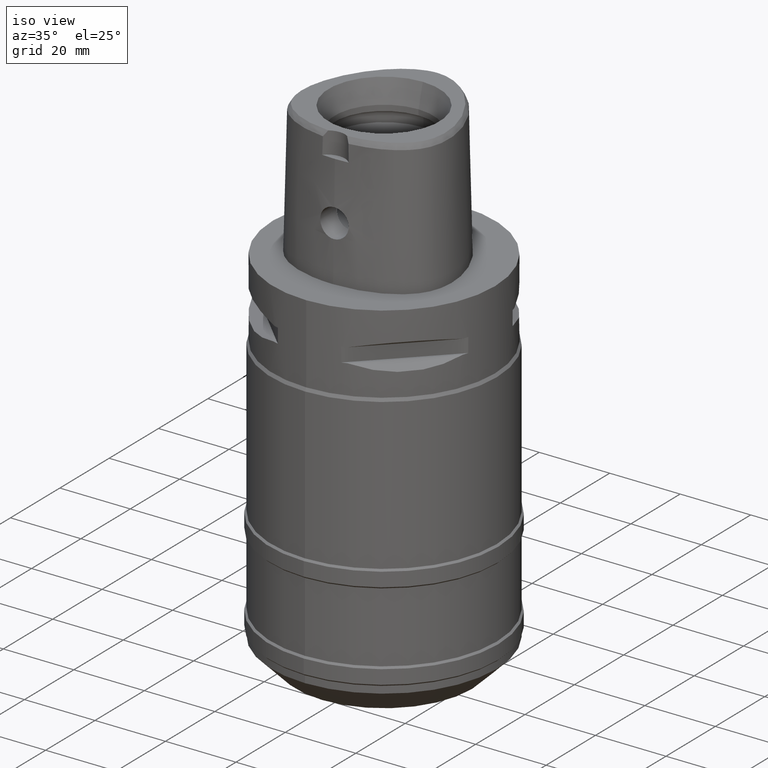
[diagram: clean part render]
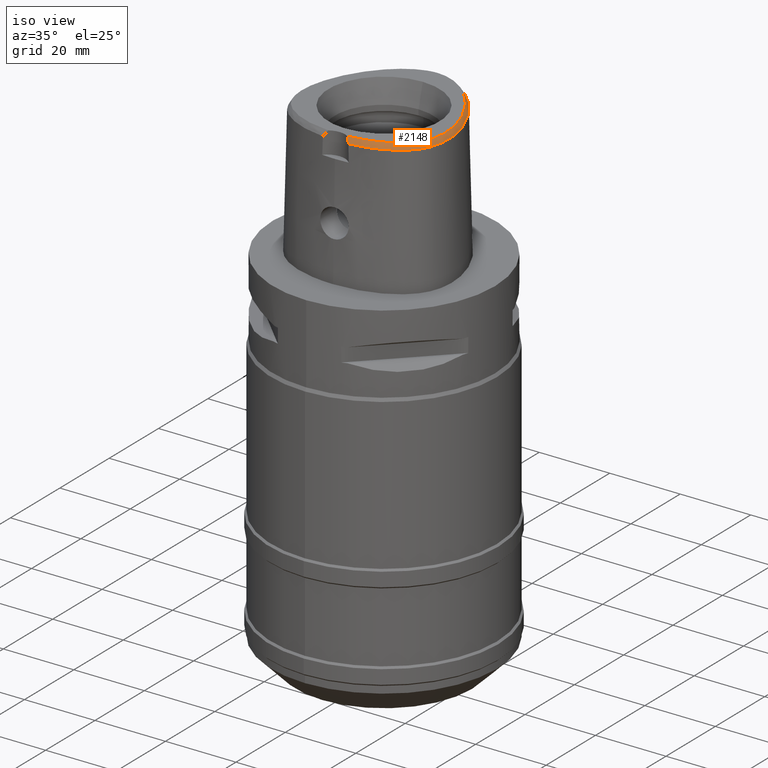
[diagram: same view with one face highlighted and labeled with its STEP entity id]
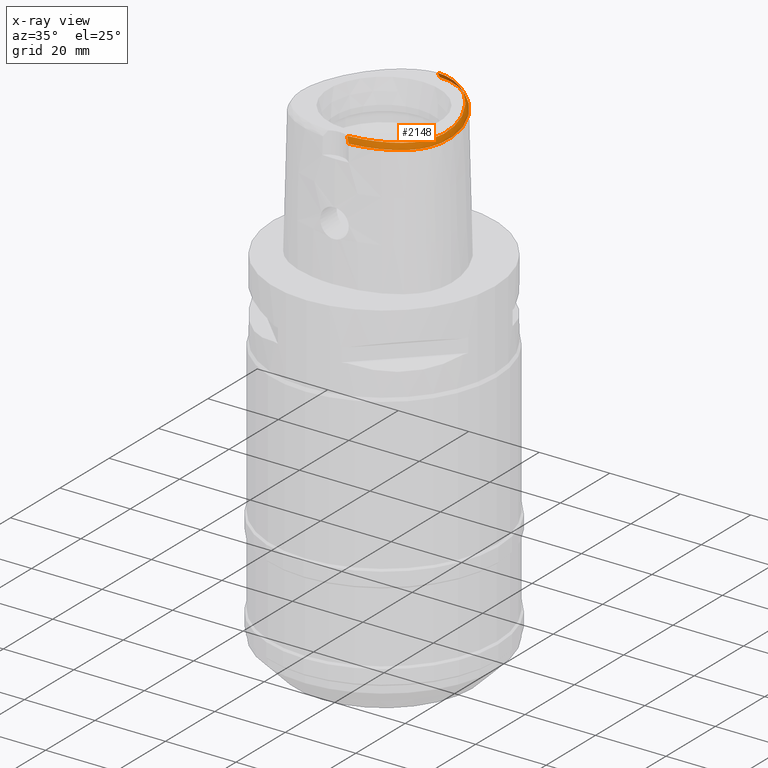
[diagram: x-ray of the same camera — body ghosted, the highlighted face saturated]
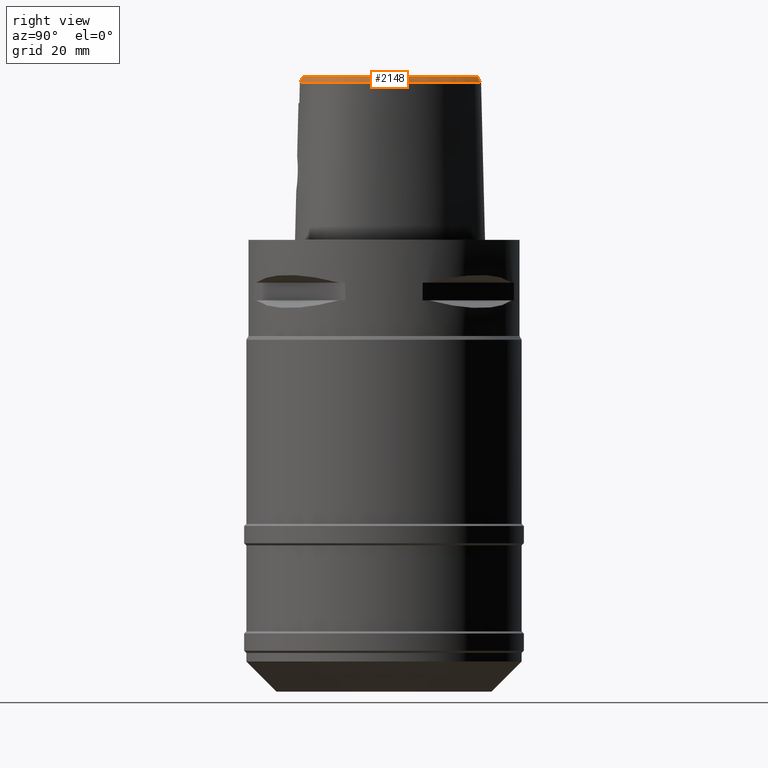
[diagram: same view with one face highlighted and labeled with its STEP entity id]
A machine part, iso view. The second image highlights one B-rep face of the part: STEP entity #2148.
The next image is the same camera in x-ray: the body ghosted, the highlighted face saturated — about 0% of this face is hidden behind the body in this view.
A second angle (right view) of the same face is appended — the face is thin or edge-on in the first view.
In plain terms, the highlighted face is a freeform B-spline surface patch.
Its self-contained STEP definition (entity closure, byte-faithful):
#71=CARTESIAN_POINT('',(-3.470944899526E-11,2.168728795390E1,3.8E1));
#76=CARTESIAN_POINT('',(-3.470944899526E-11,2.168728795390E1,3.8E1));
#77=CARTESIAN_POINT('',(3.664446774818E-1,2.168728795390E1,3.8E1));
#78=CARTESIAN_POINT('',(1.115800651417E0,2.164780835158E1,3.8E1));
#79=CARTESIAN_POINT('',(2.278233720594E0,2.146436819102E1,3.8E1));
#80=CARTESIAN_POINT('',(3.512111920667E0,2.114006756116E1,3.8E1));
#81=CARTESIAN_POINT('',(4.825090720471E0,2.065266341585E1,3.8E1));
#82=CARTESIAN_POINT('',(6.204381961431E0,1.998427421272E1,3.8E1));
#83=CARTESIAN_POINT('',(7.586844391552E0,1.915487800532E1,3.8E1));
#84=CARTESIAN_POINT('',(8.971619010853E0,1.816311562069E1,3.8E1));
#85=CARTESIAN_POINT('',(1.036798775425E1,1.699347536473E1,3.8E1));
#86=CARTESIAN_POINT('',(1.183485944204E1,1.557143857497E1,3.8E1));
#87=CARTESIAN_POINT('',(1.341178714067E1,1.378742047720E1,3.8E1));
#88=CARTESIAN_POINT('',(1.496213476814E1,1.171735797671E1,3.8E1));
#89=CARTESIAN_POINT('',(1.637320544182E1,9.484201683278E0,3.8E1));
#90=CARTESIAN_POINT('',(1.760554695613E1,7.147308496516E0,3.8E1));
#91=CARTESIAN_POINT('',(1.862952744834E1,4.765551154351E0,3.8E1));
#92=CARTESIAN_POINT('',(1.939520639405E1,2.490827481268E0,3.8E1));
#93=CARTESIAN_POINT('',(1.989922708082E1,4.913182978251E-1,3.8E1));
#94=CARTESIAN_POINT('',(2.021597235636E1,-1.314393817561E0,3.8E1));
#95=CARTESIAN_POINT('',(2.038210654909E1,-3.008415104711E0,3.8E1));
#96=CARTESIAN_POINT('',(2.040901681505E1,-4.622266832975E0,3.8E1));
#97=CARTESIAN_POINT('',(2.029795291450E1,-6.151198326963E0,3.8E1));
#98=CARTESIAN_POINT('',(2.006225329341E1,-7.535865012974E0,3.8E1));
#99=CARTESIAN_POINT('',(1.972703032173E1,-8.761612926258E0,3.8E1));
#100=CARTESIAN_POINT('',(1.930323316285E1,-9.861965193760E0,3.8E1));
#101=CARTESIAN_POINT('',(1.879910483295E1,-1.085254401266E1,3.8E1));
#102=CARTESIAN_POINT('',(1.819600434693E1,-1.178074744382E1,3.8E1));
#103=CARTESIAN_POINT('',(1.745668879329E1,-1.269742070119E1,3.8E1));
#104=CARTESIAN_POINT('',(1.656186212653E1,-1.360223484172E1,3.8E1));
#105=CARTESIAN_POINT('',(1.548548439567E1,-1.449596842863E1,3.8E1));
#106=CARTESIAN_POINT('',(1.421200844026E1,-1.536085805172E1,3.8E1));
#107=CARTESIAN_POINT('',(1.280701528752E1,-1.614179483196E1,3.8E1));
#108=CARTESIAN_POINT('',(1.125501328207E1,-1.684681391266E1,3.8E1));
#109=CARTESIAN_POINT('',(9.541359087101E0,-1.747291087570E1,3.8E1));
#110=CARTESIAN_POINT('',(7.576932446718E0,-1.803291050212E1,3.8E1));
#111=CARTESIAN_POINT('',(5.252352080565E0,-1.850468021750E1,3.8E1));
#112=CARTESIAN_POINT('',(3.567758591395E0,-1.870948341344E1,3.8E1));
#113=CARTESIAN_POINT('',(2.682287482607E0,-1.878036330229E1,3.8E1));
#134=CARTESIAN_POINT('',(3.637738219117E0,-1.956971420299E1,3.652185956444E1));
#135=CARTESIAN_POINT('',(3.538725291818E0,-1.946471329894E1,3.671602245719E1));
#136=CARTESIAN_POINT('',(3.334590789626E0,-1.926648041621E1,3.708450597133E1));
#137=CARTESIAN_POINT('',(3.015075434857E0,-1.900441033046E1,3.757600554043E1));
#138=CARTESIAN_POINT('',(2.794073448609E0,-1.885142204948E1,3.786523355832E1));
#139=CARTESIAN_POINT('',(2.682287482607E0,-1.878036330229E1,3.8E1));
#144=CARTESIAN_POINT('',(-1.667907792902E-11,2.256201468012E1,
3.652186680744E1));
#145=CARTESIAN_POINT('',(3.876439141491E-1,2.256201468011E1,3.652186680744E1));
#146=CARTESIAN_POINT('',(1.160166764417E0,2.252277287952E1,3.652179525385E1));
#147=CARTESIAN_POINT('',(2.385461868672E0,2.233619832574E1,3.652187676295E1));
#148=CARTESIAN_POINT('',(3.669786076945E0,2.200750917845E1,3.652186319644E1));
#149=CARTESIAN_POINT('',(5.027986179812E0,2.151685594830E1,3.652187402889E1));
#150=CARTESIAN_POINT('',(6.459564743744E0,2.084105507600E1,3.652186779070E1));
#151=CARTESIAN_POINT('',(7.912176109637E0,1.998828303412E1,3.652186807808E1));
#152=CARTESIAN_POINT('',(9.355461898342E0,1.897262199195E1,3.652186340391E1));
#153=CARTESIAN_POINT('',(1.080575828428E1,1.777688421416E1,3.652187155570E1));
#154=CARTESIAN_POINT('',(1.232138423369E1,1.632857174076E1,3.652186551832E1));
#155=CARTESIAN_POINT('',(1.393850104042E1,1.452487170156E1,3.652186935294E1));
#156=CARTESIAN_POINT('',(1.551864252029E1,1.244938668258E1,3.652183742926E1));
#157=CARTESIAN_POINT('',(1.697015951435E1,1.019683525629E1,3.652186904372E1));
#158=CARTESIAN_POINT('',(1.824544277146E1,7.833086968720E0,3.652186144215E1));
#159=CARTESIAN_POINT('',(1.931318362197E1,5.420711236267E0,3.652186558218E1));
#160=CARTESIAN_POINT('',(2.013149247763E1,3.083916746228E0,3.652187105172E1));
#161=CARTESIAN_POINT('',(2.068866406552E1,9.806703677154E-1,3.652186030585E1));
#162=CARTESIAN_POINT('',(2.104336611833E1,-9.155788206726E-1,3.652186922946E1));
#163=CARTESIAN_POINT('',(2.123896886505E1,-2.687156799710E0,3.652186568778E1));
#164=CARTESIAN_POINT('',(2.128983019219E1,-4.395801704161E0,3.652186796707E1));
#165=CARTESIAN_POINT('',(2.119430248586E1,-6.015130475253E0,3.652186710282E1));
#166=CARTESIAN_POINT('',(2.096948135973E1,-7.476697374670E0,3.652187011135E1));
#167=CARTESIAN_POINT('',(2.063672305575E1,-8.789154002814E0,3.652186783708E1));
#168=CARTESIAN_POINT('',(2.020963216500E1,-9.970830707856E0,3.652185746801E1));
#169=CARTESIAN_POINT('',(1.969839222879E1,-1.103813041534E1,3.652187889151E1));
#170=CARTESIAN_POINT('',(1.909005209770E1,-1.203154018613E1,3.652187263921E1));
#171=CARTESIAN_POINT('',(1.835332997358E1,-1.299949864240E1,3.652187671442E1));
#172=CARTESIAN_POINT('',(1.746431925924E1,-1.395332925741E1,3.652186406049E1));
#173=CARTESIAN_POINT('',(1.641022790193E1,-1.488523317881E1,3.652186886226E1));
#174=CARTESIAN_POINT('',(1.514804718088E1,-1.580358881685E1,3.652186869152E1));
#175=CARTESIAN_POINT('',(1.371156636844E1,-1.665845784554E1,3.652186525004E1));
#176=CARTESIAN_POINT('',(1.214638634895E1,-1.742004841323E1,3.652186783812E1));
#177=CARTESIAN_POINT('',(1.042424140204E1,-1.809836003957E1,3.652187061086E1));
#178=CARTESIAN_POINT('',(8.494297543563E0,-1.869976187446E1,3.652185559946E1));
#179=CARTESIAN_POINT('',(6.206001096755E0,-1.922612770503E1,3.652187910101E1));
#180=CARTESIAN_POINT('',(4.519194829960E0,-1.947579793058E1,3.652183691898E1));
#181=CARTESIAN_POINT('',(3.637738219117E0,-1.956971420299E1,3.652185956444E1));
#238=DIRECTION('',(-1.049764415866E-11,-5.092834681090E-1,8.605988316927E-1));
#239=VECTOR('',#238,1.717563559379E0);
#240=CARTESIAN_POINT('',(-1.667907792902E-11,2.256201468012E1,
3.652186680744E1));
#241=LINE('',#240,#239);
#1664=CARTESIAN_POINT('',(2.682287482605E0,-1.878036330229E1,3.8E1));
#1665=VERTEX_POINT('',#1664);
#1666=VERTEX_POINT('',#71);
#1671=VERTEX_POINT('',#134);
#1678=CARTESIAN_POINT('',(-1.667907792902E-11,2.256201468012E1,
3.652186680744E1));
#1679=VERTEX_POINT('',#1678);
#1891=CARTESIAN_POINT('',(2.065676728375E0,-1.871979867258E1,3.817570693692E1));
#1892=CARTESIAN_POINT('',(2.087875519916E0,-1.908001836981E1,3.756584494119E1));
#1893=CARTESIAN_POINT('',(2.110074311457E0,-1.944023806704E1,3.695598294547E1));
#1894=CARTESIAN_POINT('',(2.132273102998E0,-1.980045776427E1,3.634612094975E1));
#1895=CARTESIAN_POINT('',(2.269129793846E0,-1.870725879099E1,3.817570693124E1));
#1896=CARTESIAN_POINT('',(2.293528581384E0,-1.906734291499E1,3.756584495521E1));
#1897=CARTESIAN_POINT('',(2.317927368922E0,-1.942742703899E1,3.695598297918E1));
#1898=CARTESIAN_POINT('',(2.342326156460E0,-1.978751116299E1,3.634612100315E1));
#1899=CARTESIAN_POINT('',(2.634928664408E0,-1.868134018170E1,3.817570692572E1));
#1900=CARTESIAN_POINT('',(2.663295702612E0,-1.904114327513E1,3.756584496885E1));
#1901=CARTESIAN_POINT('',(2.691662740816E0,-1.940094636856E1,3.695598301198E1));
#1902=CARTESIAN_POINT('',(2.720029779019E0,-1.976074946200E1,3.634612105510E1));
#1903=CARTESIAN_POINT('',(3.518355922630E0,-1.860405160170E1,3.817570693801E1));
#1904=CARTESIAN_POINT('',(3.556381905159E0,-1.896300975798E1,3.756584493848E1));
#1905=CARTESIAN_POINT('',(3.594407887688E0,-1.932196791425E1,3.695598293895E1));
#1906=CARTESIAN_POINT('',(3.632433870217E0,-1.968092607053E1,3.634612093942E1));
#1907=CARTESIAN_POINT('',(4.700828238046E0,-1.846301062834E1,3.817570703086E1));
#1908=CARTESIAN_POINT('',(4.752016579283E0,-1.882040464101E1,3.756584470904E1));
#1909=CARTESIAN_POINT('',(4.803204920521E0,-1.917779865368E1,3.695598238722E1));
#1910=CARTESIAN_POINT('',(4.854393261758E0,-1.953519266635E1,3.634612006540E1));
#1911=CARTESIAN_POINT('',(6.176803758596E0,-1.821459610781E1,3.817570705098E1));
#1912=CARTESIAN_POINT('',(6.245153606004E0,-1.856911179597E1,3.756584465935E1));
#1913=CARTESIAN_POINT('',(6.313503453411E0,-1.892362748412E1,3.695598226772E1));
#1914=CARTESIAN_POINT('',(6.381853300818E0,-1.927814317228E1,3.634611987608E1));
#1915=CARTESIAN_POINT('',(7.582190789817E0,-1.790721706480E1,3.817570671269E1));
#1916=CARTESIAN_POINT('',(7.667743831739E0,-1.825798257334E1,3.756584549523E1));
#1917=CARTESIAN_POINT('',(7.753296873660E0,-1.860874808188E1,3.695598427778E1));
#1918=CARTESIAN_POINT('',(7.838849915582E0,-1.895951359042E1,3.634612306032E1));
#1919=CARTESIAN_POINT('',(8.907298969808E0,-1.754825085489E1,3.817570658365E1));
#1920=CARTESIAN_POINT('',(9.010109127529E0,-1.789435682410E1,3.756584581406E1));
#1921=CARTESIAN_POINT('',(9.112919285250E0,-1.824046279331E1,3.695598504447E1));
#1922=CARTESIAN_POINT('',(9.215729442971E0,-1.858656876252E1,3.634612427488E1));
#1923=CARTESIAN_POINT('',(1.014291085496E1,-1.714616175203E1,3.817570675614E1));
#1924=CARTESIAN_POINT('',(1.026302315350E1,-1.748665606800E1,3.756584538785E1));
#1925=CARTESIAN_POINT('',(1.038313545204E1,-1.782715038398E1,3.695598401955E1));
#1926=CARTESIAN_POINT('',(1.050324775058E1,-1.816764469996E1,3.634612265125E1));
#1927=CARTESIAN_POINT('',(1.128381582728E1,-1.670949907192E1,3.817570706152E1));
#1928=CARTESIAN_POINT('',(1.142125710003E1,-1.704338222952E1,3.756584463328E1));
#1929=CARTESIAN_POINT('',(1.155869837277E1,-1.737726538711E1,3.695598220504E1));
#1930=CARTESIAN_POINT('',(1.169613964552E1,-1.771114854471E1,3.634611977680E1));
#1931=CARTESIAN_POINT('',(1.233163713676E1,-1.624472177128E1,3.817570705284E1));
#1932=CARTESIAN_POINT('',(1.248639452289E1,-1.657094709138E1,3.756584465475E1));
#1933=CARTESIAN_POINT('',(1.264115190901E1,-1.689717241148E1,3.695598225666E1));
#1934=CARTESIAN_POINT('',(1.279590929513E1,-1.722339773158E1,3.634611985858E1));
#1935=CARTESIAN_POINT('',(1.328935811640E1,-1.575765742757E1,3.817570704036E1));
#1936=CARTESIAN_POINT('',(1.346133927674E1,-1.607514844924E1,3.756584468556E1));
#1937=CARTESIAN_POINT('',(1.363332043708E1,-1.639263947090E1,3.695598233076E1));
#1938=CARTESIAN_POINT('',(1.380530159742E1,-1.671013049257E1,3.634611997596E1));
#1939=CARTESIAN_POINT('',(1.415934630318E1,-1.525421370713E1,3.817570697979E1));
#1940=CARTESIAN_POINT('',(1.434842665324E1,-1.556183708010E1,3.756584483524E1));
#1941=CARTESIAN_POINT('',(1.453750700329E1,-1.586946045308E1,3.695598269070E1));
#1942=CARTESIAN_POINT('',(1.472658735334E1,-1.617708382606E1,3.634612054615E1));
#1943=CARTESIAN_POINT('',(1.494695524434E1,-1.473840164509E1,3.817570692940E1));
#1944=CARTESIAN_POINT('',(1.515289052692E1,-1.503501494799E1,3.756584495974E1));
#1945=CARTESIAN_POINT('',(1.535882580949E1,-1.533162825088E1,3.695598299007E1));
#1946=CARTESIAN_POINT('',(1.556476109207E1,-1.562824155377E1,3.634612102040E1));
#1947=CARTESIAN_POINT('',(1.565668959396E1,-1.421421004146E1,3.817570701841E1));
#1948=CARTESIAN_POINT('',(1.587916583338E1,-1.449863734156E1,3.756584473983E1));
#1949=CARTESIAN_POINT('',(1.610164207280E1,-1.478306464167E1,3.695598246125E1));
#1950=CARTESIAN_POINT('',(1.632411831222E1,-1.506749194178E1,3.634612018267E1));
#1951=CARTESIAN_POINT('',(1.629409182752E1,-1.368427436593E1,3.817570705401E1));
#1952=CARTESIAN_POINT('',(1.653269735425E1,-1.395532312642E1,3.756584465186E1));
#1953=CARTESIAN_POINT('',(1.677130288097E1,-1.422637188690E1,3.695598224971E1));
#1954=CARTESIAN_POINT('',(1.700990840770E1,-1.449742064738E1,3.634611984756E1));
#1955=CARTESIAN_POINT('',(1.686531538736E1,-1.314987582686E1,3.817570704298E1));
#1956=CARTESIAN_POINT('',(1.711951120930E1,-1.340637077806E1,3.756584467909E1));
#1957=CARTESIAN_POINT('',(1.737370703124E1,-1.366286572927E1,3.695598231520E1));
#1958=CARTESIAN_POINT('',(1.762790285318E1,-1.391936068047E1,3.634611995131E1));
#1959=CARTESIAN_POINT('',(1.737552190990E1,-1.261219174847E1,3.817570702708E1));
#1960=CARTESIAN_POINT('',(1.764465886570E1,-1.285297263231E1,3.756584471840E1));
#1961=CARTESIAN_POINT('',(1.791379582149E1,-1.309375351614E1,3.695598240971E1));
#1962=CARTESIAN_POINT('',(1.818293277728E1,-1.333453439998E1,3.634612010103E1));
#1963=CARTESIAN_POINT('',(1.783002892402E1,-1.207123348749E1,3.817570696787E1));
#1964=CARTESIAN_POINT('',(1.811333717930E1,-1.229517765586E1,3.756584486471E1));
#1965=CARTESIAN_POINT('',(1.839664543459E1,-1.251912182422E1,3.695598276155E1));
#1966=CARTESIAN_POINT('',(1.867995368987E1,-1.274306599258E1,3.634612065839E1));
#1967=CARTESIAN_POINT('',(1.823339242463E1,-1.152659126049E1,3.817570706466E1));
#1968=CARTESIAN_POINT('',(1.852996970630E1,-1.173264862554E1,3.756584462554E1));
#1969=CARTESIAN_POINT('',(1.882654698797E1,-1.193870599059E1,3.695598218641E1));
#1970=CARTESIAN_POINT('',(1.912312426964E1,-1.214476335564E1,3.634611974728E1));
#1971=CARTESIAN_POINT('',(1.858824546215E1,-1.097979561666E1,3.817570701175E1));
#1972=CARTESIAN_POINT('',(1.889709919079E1,-1.116696697205E1,3.756584475628E1));
#1973=CARTESIAN_POINT('',(1.920595291944E1,-1.135413832743E1,3.695598250081E1));
#1974=CARTESIAN_POINT('',(1.951480664808E1,-1.154130968281E1,3.634612024534E1));
#1975=CARTESIAN_POINT('',(1.890397627731E1,-1.041961082802E1,3.817570706472E1));
#1976=CARTESIAN_POINT('',(1.922404922267E1,-1.058687134294E1,3.756584462539E1));
#1977=CARTESIAN_POINT('',(1.954412216803E1,-1.075413185786E1,3.695598218607E1));
#1978=CARTESIAN_POINT('',(1.986419511339E1,-1.092139237277E1,3.634611974674E1));
#1979=CARTESIAN_POINT('',(1.919174812788E1,-9.825386481079E0,3.817570701283E1));
#1980=CARTESIAN_POINT('',(1.952157894898E1,-9.972450982583E0,3.756584475360E1));
#1981=CARTESIAN_POINT('',(1.985140977009E1,-1.011951548409E1,3.695598249438E1));
#1982=CARTESIAN_POINT('',(2.018124059119E1,-1.026657998559E1,3.634612023515E1));
#1983=CARTESIAN_POINT('',(1.945248166050E1,-9.189759790394E0,3.817570698412E1));
#1984=CARTESIAN_POINT('',(1.979071993979E1,-9.316283455074E0,3.756584482456E1));
#1985=CARTESIAN_POINT('',(2.012895821909E1,-9.442807119753E0,3.695598266501E1));
#1986=CARTESIAN_POINT('',(2.046719649838E1,-9.569330784432E0,3.634612050546E1));
#1987=CARTESIAN_POINT('',(1.968375329366E1,-8.510680300165E0,3.817570703608E1));
#1988=CARTESIAN_POINT('',(2.002903479464E1,-8.616459345365E0,3.756584469615E1));
#1989=CARTESIAN_POINT('',(2.037431629561E1,-8.722238390566E0,3.695598235623E1));
#1990=CARTESIAN_POINT('',(2.071959779659E1,-8.828017435766E0,3.634612001630E1));
#1991=CARTESIAN_POINT('',(1.988356599406E1,-7.783393878894E0,3.817570704719E1));
#1992=CARTESIAN_POINT('',(2.023453961840E1,-7.868370173769E0,3.756584466870E1));
#1993=CARTESIAN_POINT('',(2.058551324275E1,-7.953346468644E0,3.695598229021E1));
#1994=CARTESIAN_POINT('',(2.093648686709E1,-8.038322763519E0,3.634611991171E1));
#1995=CARTESIAN_POINT('',(2.004889214674E1,-7.003673694110E0,3.817570705305E1));
#1996=CARTESIAN_POINT('',(2.040424127505E1,-7.067901939014E0,3.756584465424E1));
#1997=CARTESIAN_POINT('',(2.075959040336E1,-7.132130183918E0,3.695598225542E1));
#1998=CARTESIAN_POINT('',(2.111493953167E1,-7.196358428821E0,3.634611985660E1));
#1999=CARTESIAN_POINT('',(2.017596441250E1,-6.167279177947E0,3.817570698368E1));
#2000=CARTESIAN_POINT('',(2.053441774987E1,-6.210912977993E0,3.756584482564E1));
#2001=CARTESIAN_POINT('',(2.089287108723E1,-6.254546778040E0,3.695598266760E1));
#2002=CARTESIAN_POINT('',(2.125132442460E1,-6.298180578087E0,3.634612050955E1));
#2003=CARTESIAN_POINT('',(2.026030480300E1,-5.269668339213E0,3.817570692628E1));
#2004=CARTESIAN_POINT('',(2.062064268966E1,-5.292982710928E0,3.756584496746E1));
#2005=CARTESIAN_POINT('',(2.098098057632E1,-5.316297082642E0,3.695598300864E1));
#2006=CARTESIAN_POINT('',(2.134131846298E1,-5.339611454357E0,3.634612104982E1));
#2007=CARTESIAN_POINT('',(2.029659410931E1,-4.308375907887E0,3.817570701543E1));
#2008=CARTESIAN_POINT('',(2.065766285750E1,-4.311704682239E0,3.756584474719E1));
#2009=CARTESIAN_POINT('',(2.101873160569E1,-4.315033456591E0,3.695598247896E1));
#2010=CARTESIAN_POINT('',(2.137980035388E1,-4.318362230943E0,3.634612021072E1));
#2011=CARTESIAN_POINT('',(2.027899787741E1,-3.280965813972E0,3.817570703697E1));
#2012=CARTESIAN_POINT('',(2.063970763003E1,-3.264696588841E0,3.756584469395E1));
#2013=CARTESIAN_POINT('',(2.100041738265E1,-3.248427363711E0,3.695598235093E1));
#2014=CARTESIAN_POINT('',(2.136112713527E1,-3.232158138581E0,3.634612000792E1));
#2015=CARTESIAN_POINT('',(2.020125713037E1,-2.185545689735E0,3.817570708077E1));
#2016=CARTESIAN_POINT('',(2.056058761422E1,-2.150149444707E0,3.756584458573E1));
#2017=CARTESIAN_POINT('',(2.091991809807E1,-2.114753199678E0,3.695598209068E1));
#2018=CARTESIAN_POINT('',(2.127924858192E1,-2.079356954650E0,3.634611959564E1));
#2019=CARTESIAN_POINT('',(2.005697699401E1,-1.023300053157E0,3.817570697774E1));
#2020=CARTESIAN_POINT('',(2.041396829254E1,-9.692281264379E-1,
3.756584484032E1));
#2021=CARTESIAN_POINT('',(2.077095959107E1,-9.151561997192E-1,
3.695598270290E1));
#2022=CARTESIAN_POINT('',(2.112795088960E1,-8.610842730004E-1,
3.634612056548E1));
#2023=CARTESIAN_POINT('',(1.983957781303E1,2.053535876919E-1,3.817570665585E1));
#2024=CARTESIAN_POINT('',(2.019334080921E1,2.775588953082E-1,3.756584563569E1));
#2025=CARTESIAN_POINT('',(2.054710380540E1,3.497642029244E-1,3.695598461554E1));
#2026=CARTESIAN_POINT('',(2.090086680159E1,4.219695105407E-1,3.634612359539E1));
#2027=CARTESIAN_POINT('',(1.954312614087E1,1.496169097687E0,3.817570657509E1));
#2028=CARTESIAN_POINT('',(1.989282536237E1,1.585993734385E0,3.756584583521E1));
#2029=CARTESIAN_POINT('',(2.024252458386E1,1.675818371083E0,3.695598509532E1));
#2030=CARTESIAN_POINT('',(2.059222380535E1,1.765643007781E0,3.634612435544E1));
#2031=CARTESIAN_POINT('',(1.916337448321E1,2.839421296050E0,3.817570681028E1));
#2032=CARTESIAN_POINT('',(1.950822449593E1,2.946348054231E0,3.756584525410E1));
#2033=CARTESIAN_POINT('',(1.985307450865E1,3.053274812411E0,3.695598369793E1));
#2034=CARTESIAN_POINT('',(2.019792452137E1,3.160201570592E0,3.634612214175E1));
#2035=CARTESIAN_POINT('',(1.869821099620E1,4.222157621737E0,3.817570709947E1));
#2036=CARTESIAN_POINT('',(1.903745613019E1,4.345709129640E0,3.756584453953E1));
#2037=CARTESIAN_POINT('',(1.937670126419E1,4.469260637544E0,3.695598197959E1));
#2038=CARTESIAN_POINT('',(1.971594639818E1,4.592812145447E0,3.634611941965E1));
#2039=CARTESIAN_POINT('',(1.814655329629E1,5.632305833881E0,3.817570699749E1));
#2040=CARTESIAN_POINT('',(1.847947932879E1,5.771985006475E0,3.756584479152E1));
#2041=CARTESIAN_POINT('',(1.881240536128E1,5.911664179069E0,3.695598258555E1));
#2042=CARTESIAN_POINT('',(1.914533139377E1,6.051343351663E0,3.634612037959E1));
#2043=CARTESIAN_POINT('',(1.750984012924E1,7.055126678261E0,3.817570692237E1));
#2044=CARTESIAN_POINT('',(1.783574768617E1,7.210473828663E0,3.756584497712E1));
#2045=CARTESIAN_POINT('',(1.816165524309E1,7.365820979066E0,3.695598303186E1));
#2046=CARTESIAN_POINT('',(1.848756280002E1,7.521168129468E0,3.634612108661E1));
#2047=CARTESIAN_POINT('',(1.679432274333E1,8.469564083965E0,3.817570699178E1));
#2048=CARTESIAN_POINT('',(1.711252452459E1,8.640138681964E0,3.756584480563E1));
#2049=CARTESIAN_POINT('',(1.743072630586E1,8.810713279963E0,3.695598261948E1));
#2050=CARTESIAN_POINT('',(1.774892808712E1,8.981287877961E0,3.634612043333E1));
#2051=CARTESIAN_POINT('',(1.600840424597E1,9.855987649120E0,3.817570703122E1));
#2052=CARTESIAN_POINT('',(1.631818610024E1,1.004141472018E1,3.756584470817E1));
#2053=CARTESIAN_POINT('',(1.662796795451E1,1.022684179124E1,3.695598238512E1));
#2054=CARTESIAN_POINT('',(1.693774980878E1,1.041226886230E1,3.634612006207E1));
#2055=CARTESIAN_POINT('',(1.515998858319E1,1.120005101590E1,3.817570692547E1));
#2056=CARTESIAN_POINT('',(1.546066998035E1,1.139989819523E1,3.756584496947E1));
#2057=CARTESIAN_POINT('',(1.576135137752E1,1.159974537456E1,3.695598301348E1));
#2058=CARTESIAN_POINT('',(1.606203277469E1,1.179959255389E1,3.634612105748E1));
#2059=CARTESIAN_POINT('',(1.426003639780E1,1.248624467512E1,3.817570695590E1));
#2060=CARTESIAN_POINT('',(1.455090107576E1,1.270013047918E1,3.756584489427E1));
#2061=CARTESIAN_POINT('',(1.484176575372E1,1.291401628325E1,3.695598283263E1));
#2062=CARTESIAN_POINT('',(1.513263043168E1,1.312790208731E1,3.634612077100E1));
#2063=CARTESIAN_POINT('',(1.332354315399E1,1.369718529744E1,3.817570708830E1));
#2064=CARTESIAN_POINT('',(1.360385655088E1,1.392472846821E1,3.756584456715E1));
#2065=CARTESIAN_POINT('',(1.388416994777E1,1.415227163897E1,3.695598204601E1));
#2066=CARTESIAN_POINT('',(1.416448334466E1,1.437981480973E1,3.634611952486E1));
#2067=CARTESIAN_POINT('',(1.236376335484E1,1.482179178889E1,3.817570693943E1));
#2068=CARTESIAN_POINT('',(1.263273824367E1,1.506263715582E1,3.756584493498E1));
#2069=CARTESIAN_POINT('',(1.290171313250E1,1.530348252274E1,3.695598293053E1));
#2070=CARTESIAN_POINT('',(1.317068802134E1,1.554432788966E1,3.634612092608E1));
#2071=CARTESIAN_POINT('',(1.139186755026E1,1.585407370260E1,3.817570662353E1));
#2072=CARTESIAN_POINT('',(1.164872811510E1,1.610780482254E1,3.756584571554E1));
#2073=CARTESIAN_POINT('',(1.190558867994E1,1.636153594248E1,3.695598480755E1));
#2074=CARTESIAN_POINT('',(1.216244924478E1,1.661526706242E1,3.634612389956E1));
#2075=CARTESIAN_POINT('',(1.041972095402E1,1.678927831369E1,3.817570660230E1));
#2076=CARTESIAN_POINT('',(1.066363686789E1,1.705548414055E1,3.756584576801E1));
#2077=CARTESIAN_POINT('',(1.090755278176E1,1.732168996741E1,3.695598493373E1));
#2078=CARTESIAN_POINT('',(1.115146869563E1,1.758789579428E1,3.634612409944E1));
#2079=CARTESIAN_POINT('',(9.458543418340E0,1.762500393845E1,3.817570686832E1));
#2080=CARTESIAN_POINT('',(9.688662376682E0,1.790323089065E1,3.756584511070E1));
#2081=CARTESIAN_POINT('',(9.918781335025E0,1.818145784285E1,3.695598335308E1));
#2082=CARTESIAN_POINT('',(1.014890029337E1,1.845968479504E1,3.634612159546E1));
#2083=CARTESIAN_POINT('',(8.516784765948E0,1.836261350092E1,3.817570708998E1));
#2084=CARTESIAN_POINT('',(8.732200711598E0,1.865238184078E1,3.756584456297E1));
#2085=CARTESIAN_POINT('',(8.947616657248E0,1.894215018063E1,3.695598203595E1));
#2086=CARTESIAN_POINT('',(9.163032602898E0,1.923191852049E1,3.634611950893E1));
#2087=CARTESIAN_POINT('',(7.598388186745E0,1.900738596227E1,3.817570702886E1));
#2088=CARTESIAN_POINT('',(7.798224133235E0,1.930811841616E1,3.756584471402E1));
#2089=CARTESIAN_POINT('',(7.998060079725E0,1.960885087004E1,3.695598239917E1));
#2090=CARTESIAN_POINT('',(8.197896026216E0,1.990958332393E1,3.634612008433E1));
#2091=CARTESIAN_POINT('',(6.707455285698E0,1.956442613453E1,3.817570703282E1));
#2092=CARTESIAN_POINT('',(6.890809663248E0,1.987549051949E1,3.756584470422E1));
#2093=CARTESIAN_POINT('',(7.074164040799E0,2.018655490444E1,3.695598237561E1));
#2094=CARTESIAN_POINT('',(7.257518418350E0,2.049761928940E1,3.634612004701E1));
#2095=CARTESIAN_POINT('',(5.846670392647E0,2.003947129506E1,3.817570696489E1));
#2096=CARTESIAN_POINT('',(6.012638465210E0,2.036015777591E1,3.756584487206E1));
#2097=CARTESIAN_POINT('',(6.178606537772E0,2.068084425675E1,3.695598277923E1));
#2098=CARTESIAN_POINT('',(6.344574610334E0,2.100153073759E1,3.634612068640E1));
#2099=CARTESIAN_POINT('',(5.016690915366E0,2.043906047592E1,3.817570697973E1));
#2100=CARTESIAN_POINT('',(5.164406854371E0,2.076856132083E1,3.756584483538E1));
#2101=CARTESIAN_POINT('',(5.312122793375E0,2.109806216574E1,3.695598269103E1));
#2102=CARTESIAN_POINT('',(5.459838732380E0,2.142756301065E1,3.634612054667E1));
#2103=CARTESIAN_POINT('',(4.218609699617E0,2.076896435990E1,3.817570703620E1));
#2104=CARTESIAN_POINT('',(4.347211363103E0,2.110639295035E1,3.756584469585E1));
#2105=CARTESIAN_POINT('',(4.475813026590E0,2.144382154080E1,3.695598235550E1));
#2106=CARTESIAN_POINT('',(4.604414690076E0,2.178125013125E1,3.634612001516E1));
#2107=CARTESIAN_POINT('',(3.450871177595E0,2.103551272981E1,3.817570698437E1));
#2108=CARTESIAN_POINT('',(3.559569151752E0,2.137987661108E1,3.756584482394E1));
#2109=CARTESIAN_POINT('',(3.668267125908E0,2.172424049235E1,3.695598266351E1));
#2110=CARTESIAN_POINT('',(3.776965100065E0,2.206860437361E1,3.634612050308E1));
#2111=CARTESIAN_POINT('',(2.711560724215E0,2.124437878864E1,3.817570697033E1));
#2112=CARTESIAN_POINT('',(2.799624396623E0,2.159459517532E1,3.756584485863E1));
#2113=CARTESIAN_POINT('',(2.887688069032E0,2.194481156201E1,3.695598274692E1));
#2114=CARTESIAN_POINT('',(2.975751741441E0,2.229502794870E1,3.634612063522E1));
#2115=CARTESIAN_POINT('',(1.999078618633E0,2.140031613932E1,3.817570703476E1));
#2116=CARTESIAN_POINT('',(2.065864931126E0,2.175521246147E1,3.756584469942E1));
#2117=CARTESIAN_POINT('',(2.132651243619E0,2.211010878361E1,3.695598236407E1));
#2118=CARTESIAN_POINT('',(2.199437556112E0,2.246500510576E1,3.634612002873E1));
#2119=CARTESIAN_POINT('',(1.312073359280E0,2.150757759278E1,3.817570709640E1));
#2120=CARTESIAN_POINT('',(1.357010570565E0,2.186590180194E1,3.756584454712E1));
#2121=CARTESIAN_POINT('',(1.401947781849E0,2.222422601111E1,3.695598199785E1));
#2122=CARTESIAN_POINT('',(1.446884993134E0,2.258255022027E1,3.634611944858E1));
#2123=CARTESIAN_POINT('',(6.447875618330E-1,2.156986706751E1,3.817570705935E1));
#2124=CARTESIAN_POINT('',(6.674642753793E-1,2.193029248344E1,3.756584463866E1));
#2125=CARTESIAN_POINT('',(6.901409889255E-1,2.229071789938E1,3.695598221797E1));
#2126=CARTESIAN_POINT('',(7.128177024717E-1,2.265114331532E1,3.634611979728E1));
#2127=CARTESIAN_POINT('',(2.236838622931E-2,2.158939691975E1,3.817570699804E1));
#2128=CARTESIAN_POINT('',(2.304860945510E-2,2.195051633733E1,3.756584479016E1));
#2129=CARTESIAN_POINT('',(2.372883268090E-2,2.231163575491E1,3.695598258229E1));
#2130=CARTESIAN_POINT('',(2.440905590669E-2,2.267275517248E1,3.634612037441E1));
#2131=CARTESIAN_POINT('',(-3.939308536900E-1,2.157779260443E1,
3.817570703447E1));
#2132=CARTESIAN_POINT('',(-4.075621648132E-1,2.193849965770E1,
3.756584470014E1));
#2133=CARTESIAN_POINT('',(-4.211934759364E-1,2.229920671098E1,
3.695598236582E1));
#2134=CARTESIAN_POINT('',(-4.348247870597E-1,2.265991376425E1,
3.634612003149E1));
#2135=CARTESIAN_POINT('',(-5.983455905747E-1,2.156698447160E1,
3.817570708804E1));
#2136=CARTESIAN_POINT('',(-6.186742808588E-1,2.192729353992E1,
3.756584456776E1));
#2137=CARTESIAN_POINT('',(-6.390029711429E-1,2.228760260824E1,
3.695598204749E1));
#2138=CARTESIAN_POINT('',(-6.593316614270E-1,2.264791167656E1,
3.634611952721E1));
#2139=B_SPLINE_SURFACE_WITH_KNOTS('',3,3,((#1891,#1892,#1893,#1894),(#1895,
#1896,#1897,#1898),(#1899,#1900,#1901,#1902),(#1903,#1904,#1905,#1906),(#1907,
#1908,#1909,#1910),(#1911,#1912,#1913,#1914),(#1915,#1916,#1917,#1918),(#1919,
#1920,#1921,#1922),(#1923,#1924,#1925,#1926),(#1927,#1928,#1929,#1930),(#1931,
#1932,#1933,#1934),(#1935,#1936,#1937,#1938),(#1939,#1940,#1941,#1942),(#1943,
#1944,#1945,#1946),(#1947,#1948,#1949,#1950),(#1951,#1952,#1953,#1954),(#1955,
#1956,#1957,#1958),(#1959,#1960,#1961,#1962),(#1963,#1964,#1965,#1966),(#1967,
#1968,#1969,#1970),(#1971,#1972,#1973,#1974),(#1975,#1976,#1977,#1978),(#1979,
#1980,#1981,#1982),(#1983,#1984,#1985,#1986),(#1987,#1988,#1989,#1990),(#1991,
#1992,#1993,#1994),(#1995,#1996,#1997,#1998),(#1999,#2000,#2001,#2002),(#2003,
#2004,#2005,#2006),(#2007,#2008,#2009,#2010),(#2011,#2012,#2013,#2014),(#2015,
#2016,#2017,#2018),(#2019,#2020,#2021,#2022),(#2023,#2024,#2025,#2026),(#2027,
#2028,#2029,#2030),(#2031,#2032,#2033,#2034),(#2035,#2036,#2037,#2038),(#2039,
#2040,#2041,#2042),(#2043,#2044,#2045,#2046),(#2047,#2048,#2049,#2050),(#2051,
#2052,#2053,#2054),(#2055,#2056,#2057,#2058),(#2059,#2060,#2061,#2062),(#2063,
#2064,#2065,#2066),(#2067,#2068,#2069,#2070),(#2071,#2072,#2073,#2074),(#2075,
#2076,#2077,#2078),(#2079,#2080,#2081,#2082),(#2083,#2084,#2085,#2086),(#2087,
#2088,#2089,#2090),(#2091,#2092,#2093,#2094),(#2095,#2096,#2097,#2098),(#2099,
#2100,#2101,#2102),(#2103,#2104,#2105,#2106),(#2107,#2108,#2109,#2110),(#2111,
#2112,#2113,#2114),(#2115,#2116,#2117,#2118),(#2119,#2120,#2121,#2122),(#2123,
#2124,#2125,#2126),(#2127,#2128,#2129,#2130),(#2131,#2132,#2133,#2134),(#2135,
#2136,#2137,#2138)),.UNSPECIFIED.,.F.,.F.,.F.,(4,1,1,1,1,1,1,1,1,1,1,1,1,1,1,1,
1,1,1,1,1,1,1,1,1,1,1,1,1,1,1,1,1,1,1,1,1,1,1,1,1,1,1,1,1,1,1,1,1,1,1,1,1,1,1,1,
1,1,1,4),(4,4),(-6.872922983042E-3,0.E0,5.521655259608E-3,2.328019712995E-2,
4.103873900030E-2,5.879728087064E-2,7.655582274102E-2,9.431436461132E-2,
1.120729064817E-1,1.298314483520E-1,1.475899902223E-1,1.653485320927E-1,
1.831070739630E-1,2.008656158334E-1,2.186241577037E-1,2.363826995741E-1,
2.541412414444E-1,2.718997833148E-1,2.896583251851E-1,3.074168670555E-1,
3.251754089258E-1,3.429339507961E-1,3.606924926665E-1,3.784510345368E-1,
3.962095764072E-1,4.139681182775E-1,4.317266601479E-1,4.494852020182E-1,
4.672437438886E-1,4.850022857589E-1,5.027608276292E-1,5.205193694996E-1,
5.382779113699E-1,5.560364532403E-1,5.737949951106E-1,5.915535369810E-1,
6.093120788513E-1,6.270706207217E-1,6.448291625920E-1,6.625877044623E-1,
6.803462463327E-1,6.981047882030E-1,7.158633300734E-1,7.336218719437E-1,
7.513804138142E-1,7.691389556845E-1,7.868974975549E-1,8.046560394252E-1,
8.224145812956E-1,8.401731231659E-1,8.579316650362E-1,8.756902069066E-1,
8.934487487769E-1,9.112072906473E-1,9.289658325176E-1,9.467243743880E-1,
9.644829162583E-1,9.822414581287E-1,1.E0,1.016088127154E0),(-9.506756569412E-2,
1.095088244929E0),.UNSPECIFIED.);
#2140=ORIENTED_EDGE('',*,*,#1876,.T.);
#2141=ORIENTED_EDGE('',*,*,#1858,.F.);
#2143=ORIENTED_EDGE('',*,*,#2142,.F.);
#2145=ORIENTED_EDGE('',*,*,#2144,.T.);
#2146=EDGE_LOOP('',(#2140,#2141,#2143,#2145));
#2147=FACE_OUTER_BOUND('',#2146,.F.);
#114=B_SPLINE_CURVE_WITH_KNOTS('',3,(#76,#77,#78,#79,#80,#81,#82,#83,#84,#85,
#86,#87,#88,#89,#90,#91,#92,#93,#94,#95,#96,#97,#98,#99,#100,#101,#102,#103,
#104,#105,#106,#107,#108,#109,#110,#111,#112,#113),.UNSPECIFIED.,.F.,.F.,(4,1,1,
1,1,1,1,1,1,1,1,1,1,1,1,1,1,1,1,1,1,1,1,1,1,1,1,1,1,1,1,1,1,1,1,4),(0.E0,
2.857142857143E-2,5.714285714286E-2,8.571428571429E-2,1.142857142857E-1,
1.428571428571E-1,1.714285714286E-1,2.E-1,2.285714285714E-1,2.571428571429E-1,
2.857142857143E-1,3.142857142857E-1,3.428571428571E-1,3.714285714286E-1,4.E-1,
4.285714285714E-1,4.571428571429E-1,4.857142857143E-1,5.142857142857E-1,
5.428571428571E-1,5.714285714286E-1,6.E-1,6.285714285714E-1,6.571428571429E-1,
6.857142857143E-1,7.142857142857E-1,7.428571428571E-1,7.714285714286E-1,8.E-1,
8.285714285714E-1,8.571428571429E-1,8.857142857143E-1,9.142857142857E-1,
9.428571428571E-1,9.714285714286E-1,1.E0),.UNSPECIFIED.);
#140=B_SPLINE_CURVE_WITH_KNOTS('',3,(#134,#135,#136,#137,#138,#139),
.UNSPECIFIED.,.F.,.F.,(4,1,1,4),(0.E0,3.333333333333E-1,6.666666666667E-1,1.E0),
.UNSPECIFIED.);
#182=B_SPLINE_CURVE_WITH_KNOTS('',3,(#144,#145,#146,#147,#148,#149,#150,#151,
#152,#153,#154,#155,#156,#157,#158,#159,#160,#161,#162,#163,#164,#165,#166,#167,
#168,#169,#170,#171,#172,#173,#174,#175,#176,#177,#178,#179,#180,#181),
.UNSPECIFIED.,.F.,.F.,(4,1,1,1,1,1,1,1,1,1,1,1,1,1,1,1,1,1,1,1,1,1,1,1,1,1,1,1,
1,1,1,1,1,1,1,4),(0.E0,2.857142857143E-2,5.714285714286E-2,8.571428571429E-2,
1.142857142857E-1,1.428571428571E-1,1.714285714286E-1,2.E-1,2.285714285714E-1,
2.571428571429E-1,2.857142857143E-1,3.142857142857E-1,3.428571428571E-1,
3.714285714286E-1,4.E-1,4.285714285714E-1,4.571428571429E-1,4.857142857143E-1,
5.142857142857E-1,5.428571428571E-1,5.714285714286E-1,6.E-1,6.285714285714E-1,
6.571428571429E-1,6.857142857143E-1,7.142857142857E-1,7.428571428571E-1,
7.714285714286E-1,8.E-1,8.285714285714E-1,8.571428571429E-1,8.857142857143E-1,
9.142857142857E-1,9.428571428571E-1,9.714285714286E-1,1.E0),.UNSPECIFIED.);
#1858=EDGE_CURVE('',#1666,#1665,#114,.T.);
#1876=EDGE_CURVE('',#1671,#1665,#140,.T.);
#2142=EDGE_CURVE('',#1679,#1666,#241,.T.);
#2144=EDGE_CURVE('',#1679,#1671,#182,.T.);
#2148=ADVANCED_FACE('',(#2147),#2139,.F.);